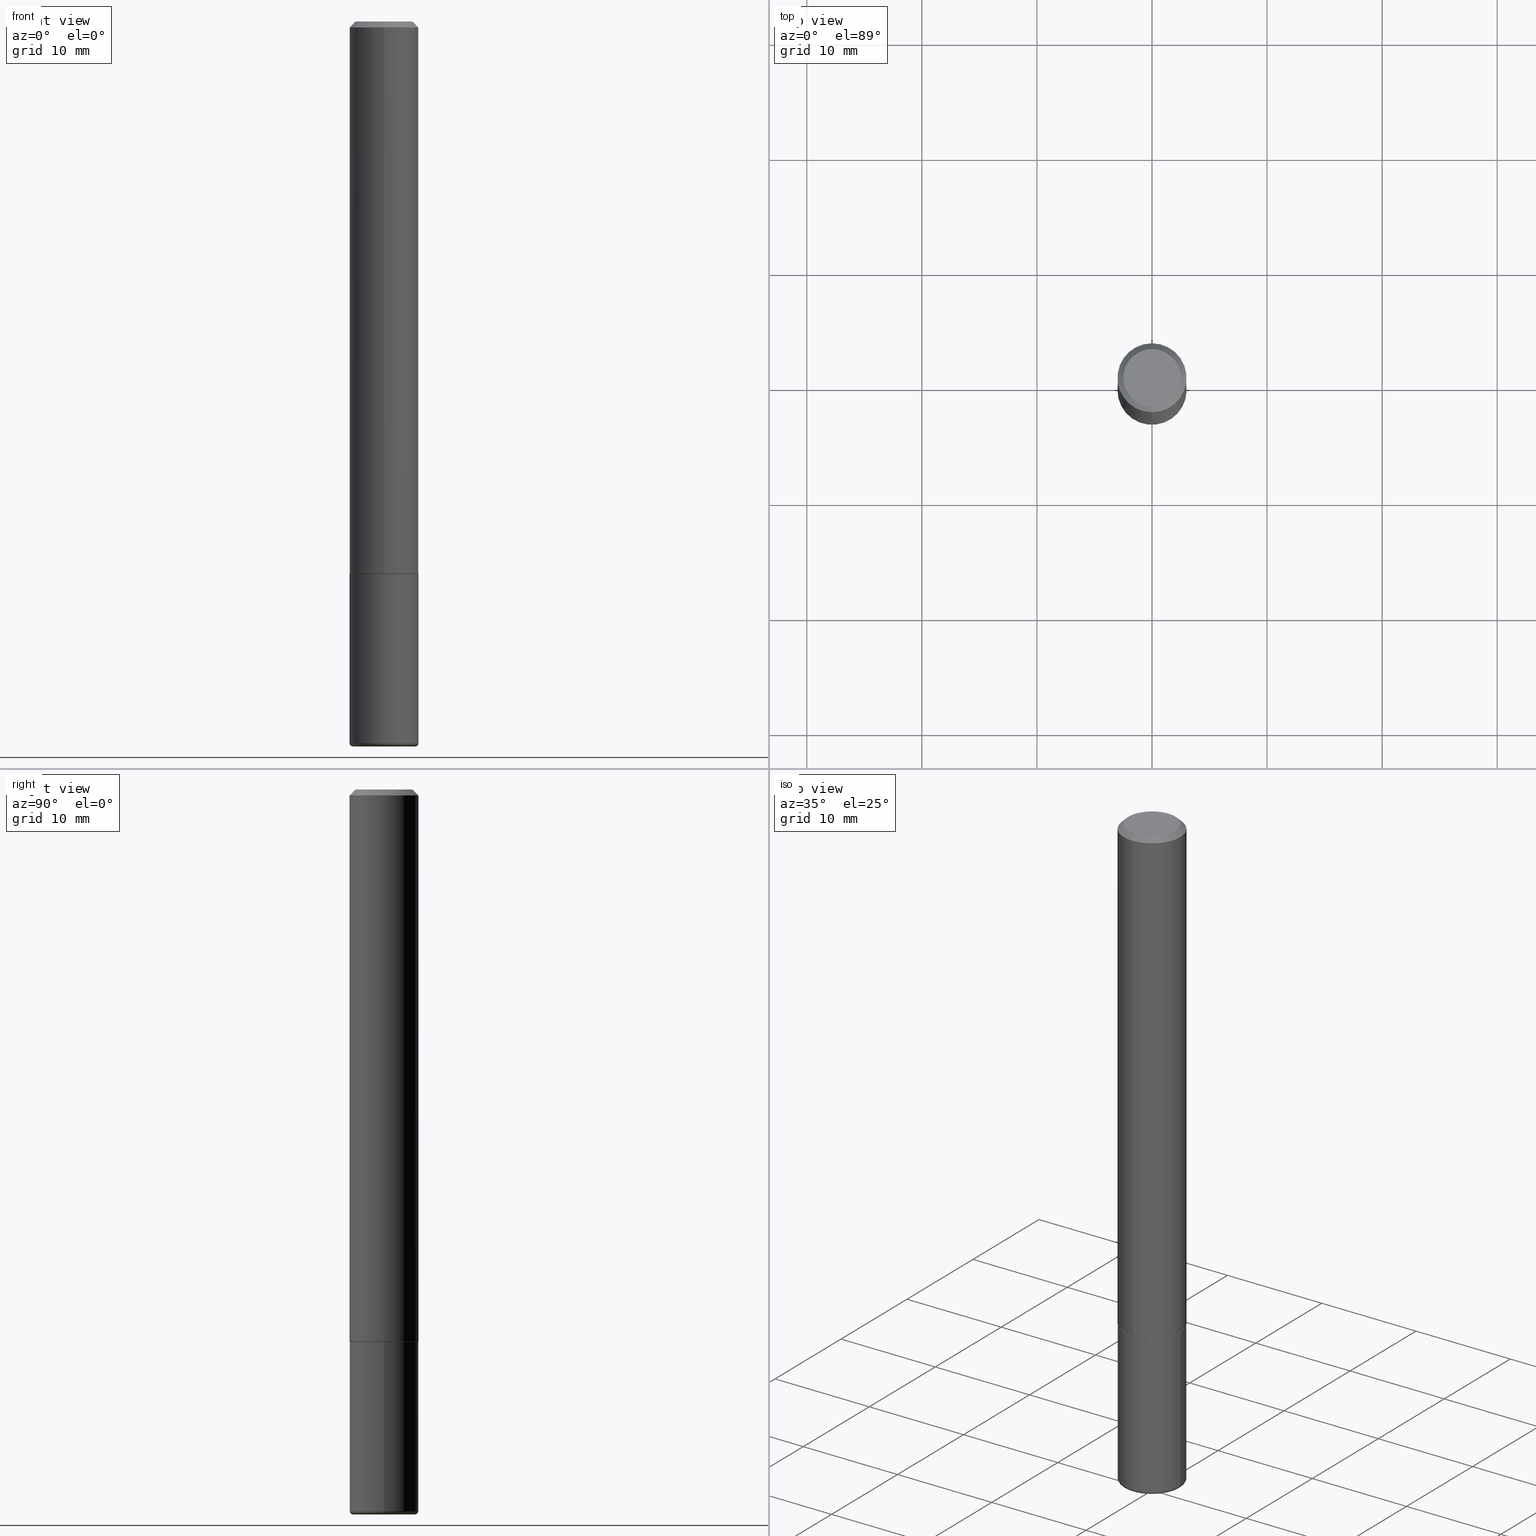
[diagram: canonical four-view strip — front | top / right | iso, engineering-drawing reading convention]
A machine part, canonical four-view strip (front | top / right | iso — engineering-drawing reading convention). The complete STEP part file that produces these views, byte-faithful:
ISO-10303-21;
HEADER;
FILE_DESCRIPTION (( 'STEP AP203' ),
    '1' );
FILE_NAME ('74304.STEP',
    '2024-03-06T15:07:32',
    ( '' ),
    ( '' ),
    'SwSTEP 2.0',
    'SolidWorks 2023',
    '' );
FILE_SCHEMA (( 'CONFIG_CONTROL_DESIGN' ));
ENDSEC;

DATA;
#1 = DIRECTION ( 'NONE',  ( 6.982962677686265922E-15, 1.000000000000000000, -3.505890868245044514E-15 ) ) ;
#2 = EDGE_CURVE ( 'NONE', #5, #232, #24, .T. ) ;
#3 = ORIENTED_EDGE ( 'NONE', *, *, #260, .T. ) ;
#4 = CARTESIAN_POINT ( 'NONE',  ( 0.1062999999999999640, -9.402210097370707052E-15, -2.480300000000001059 ) ) ;
#5 = VERTEX_POINT ( 'NONE', #91 ) ;
#6 = CIRCLE ( 'NONE', #376, 0.1180999999999999966 ) ;
#7 = CARTESIAN_POINT ( 'NONE',  ( 6.065496279980995876E-29, -8.659921164732656913E-15, -2.480300000000001059 ) ) ;
#8 = EDGE_CURVE ( 'NONE', #318, #301, #418, .T. ) ;
#9 = CC_DESIGN_PERSON_AND_ORGANIZATION_ASSIGNMENT ( #116, #52, ( #190 ) ) ;
#10 = EDGE_LOOP ( 'NONE', ( #224, #142 ) ) ;
#11 = CARTESIAN_POINT ( 'NONE',  ( -8.177049295570158041E-16, -0.1171000000000066155, -1.889700000000000379 ) ) ;
#12 = CIRCLE ( 'NONE', #160, 0.1171000000000000096 ) ;
#13 = CARTESIAN_POINT ( 'NONE',  ( 6.850286386810217648E-16, 0.09809999999999986786, -2.532481449102678727E-16 ) ) ;
#14 = EDGE_LOOP ( 'NONE', ( #296, #390, #57, #377 ) ) ;
#15 = CIRCLE ( 'NONE', #415, 0.1062999999999999640 ) ;
#16 = UNCERTAINTY_MEASURE_WITH_UNIT (LENGTH_MEASURE( 1.000000000000000082E-05 ), #48, 'distance_accuracy_value', 'NONE');
#17 = ORIENTED_EDGE ( 'NONE', *, *, #197, .F. ) ;
#18 = DIRECTION ( 'NONE',  ( -2.445468806185136597E-29, 3.491481338843145583E-15, 1.000000000000000000 ) ) ;
#19 = APPROVAL_STATUS ( 'not_yet_approved' ) ;
#20 = ORIENTED_EDGE ( 'NONE', *, *, #394, .T. ) ;
#21 = DIRECTION ( 'NONE',  ( -6.982962677686265133E-15, -1.000000000000000000, 4.626330217890359081E-15 ) ) ;
#22 = COORDINATED_UNIVERSAL_TIME_OFFSET ( 5, 0, .BEHIND. ) ;
#23 = ORIENTED_EDGE ( 'NONE', *, *, #169, .F. ) ;
#24 = CIRCLE ( 'NONE', #155, 0.09809999999999986786 ) ;
#25 = CALENDAR_DATE ( 2024, 6, 3 ) ;
#26 = FACE_OUTER_BOUND ( 'NONE', #170, .T. ) ;
#27 = VERTEX_POINT ( 'NONE', #215 ) ;
#28 = PERSON_AND_ORGANIZATION_ROLE ( 'classification_officer' ) ;
#29 = DIRECTION ( 'NONE',  ( 4.937700262164537787E-15, 0.7071067811865436870, -0.7071067811865513475 ) ) ;
#30 = FACE_OUTER_BOUND ( 'NONE', #123, .T. ) ;
#31 = DIMENSIONAL_EXPONENTS ( 1.000000000000000000, 0.000000000000000000, 0.000000000000000000, 0.000000000000000000, 0.000000000000000000, 0.000000000000000000, 0.000000000000000000 ) ;
#32 = AXIS2_PLACEMENT_3D ( 'NONE', #102, #299, #360 ) ;
#33 = CARTESIAN_POINT ( 'NONE',  ( 4.880328979817555756E-31, -6.998154843307694069E-17, -0.02000000000000006287 ) ) ;
#34 = EDGE_CURVE ( 'NONE', #101, #363, #347, .T. ) ;
#35 = ORIENTED_EDGE ( 'NONE', *, *, #310, .T. ) ;
#36 = LINE ( 'NONE', #268, #139 ) ;
#37 = CC_DESIGN_APPROVAL ( #62, ( #292 ) ) ;
#38 = VERTEX_POINT ( 'NONE', #55 ) ;
#39 = EDGE_CURVE ( 'NONE', #232, #5, #58, .T. ) ;
#40 = CARTESIAN_POINT ( 'NONE',  ( 0.000000000000000000, 0.000000000000000000, 0.000000000000000000 ) ) ;
#41 = CC_DESIGN_PERSON_AND_ORGANIZATION_ASSIGNMENT ( #375, #89, ( #182 ) ) ;
#42 = ORIENTED_EDGE ( 'NONE', *, *, #122, .F. ) ;
#43 = CARTESIAN_POINT ( 'NONE',  ( -0.1062999999999999640, -7.842092475310649423E-15, -2.480300000000001059 ) ) ;
#44 = ORIENTED_EDGE ( 'NONE', *, *, #133, .T. ) ;
#45 = CIRCLE ( 'NONE', #99, 0.1171000000000000096 ) ;
#46 = ORIENTED_EDGE ( 'NONE', *, *, #260, .F. ) ;
#47 = DIRECTION ( 'NONE',  ( -2.440164489908770066E-29, 3.499077421653835966E-15, 1.000000000000000000 ) ) ;
#48 =( CONVERSION_BASED_UNIT ( 'INCH', #407 ) LENGTH_UNIT ( ) NAMED_UNIT ( #31 ) );
#49 = CONICAL_SURFACE ( 'NONE', #108, 0.1181000000000000383, 0.7853981633974463916 ) ;
#50 = DIRECTION ( 'NONE',  ( -6.982962677686265922E-15, -1.000000000000000000, 3.499077421653835966E-15 ) ) ;
#51 = DIRECTION ( 'NONE',  ( -1.000000000000000000, 6.982962677686265922E-15, -4.876176775795935793E-29 ) ) ;
#52 = PERSON_AND_ORGANIZATION_ROLE ( 'creator' ) ;
#53 = CC_DESIGN_APPROVAL ( #134, ( #190 ) ) ;
#54 = EDGE_CURVE ( 'NONE', #408, #113, #107, .T. ) ;
#55 = CARTESIAN_POINT ( 'NONE',  ( -8.177049295570158041E-16, -0.1171000000000066155, -1.889700000000000379 ) ) ;
#56 = PRODUCT ( '74304', '74304', '', ( #313 ) ) ;
#57 = ORIENTED_EDGE ( 'NONE', *, *, #316, .T. ) ;
#58 = CIRCLE ( 'NONE', #295, 0.09809999999999986786 ) ;
#59 = COORDINATED_UNIVERSAL_TIME_OFFSET ( 5, 0, .BEHIND. ) ;
#60 = ADVANCED_FACE ( 'NONE', ( #84 ), #307, .T. ) ;
#61 = CARTESIAN_POINT ( 'NONE',  ( 6.036639748068010694E-29, -8.618721684934306273E-15, -2.468500000000000139 ) ) ;
#62 = APPROVAL ( #315, 'UNSPECIFIED' ) ;
#63 = AXIS2_PLACEMENT_3D ( 'NONE', #331, #194, #294 ) ;
#64 = CARTESIAN_POINT ( 'NONE',  ( 6.036639748068010694E-29, -8.618721684934306273E-15, -2.468500000000000139 ) ) ;
#65 = CARTESIAN_POINT ( 'NONE',  ( 4.608738672090694819E-29, -6.608707526277601759E-15, -1.888700000000000268 ) ) ;
#66 = AXIS2_PLACEMENT_3D ( 'NONE', #320, #317, #176 ) ;
#67 = AXIS2_PLACEMENT_3D ( 'NONE', #152, #47, #21 ) ;
#68 = VECTOR ( 'NONE', #362, 39.37007874015748143 ) ;
#69 = FACE_OUTER_BOUND ( 'NONE', #395, .T. ) ;
#70 = ORIENTED_EDGE ( 'NONE', *, *, #316, .F. ) ;
#71 = CARTESIAN_POINT ( 'NONE',  ( 6.036639748068010694E-29, -8.618721684934306273E-15, -2.468500000000000139 ) ) ;
#72 = ADVANCED_FACE ( 'NONE', ( #118 ), #288, .T. ) ;
#73 = ORIENTED_EDGE ( 'NONE', *, *, #92, .T. ) ;
#74 = DIRECTION ( 'NONE',  ( 7.105427357601001859E-15, 1.000000000000000000, -3.491481338843145583E-15 ) ) ;
#75 = CC_DESIGN_SECURITY_CLASSIFICATION ( #292, ( #182 ) ) ;
#76 = ORIENTED_EDGE ( 'NONE', *, *, #97, .F. ) ;
#77 = DIRECTION ( 'NONE',  ( -2.440164489908770346E-29, 3.499077421653835966E-15, 1.000000000000000000 ) ) ;
#78 = EDGE_LOOP ( 'NONE', ( #330, #44, #373, #277 ) ) ;
#79 = DIRECTION ( 'NONE',  ( -2.445468806185136597E-29, 3.491481338843145583E-15, 1.000000000000000000 ) ) ;
#80 = EDGE_LOOP ( 'NONE', ( #311, #203 ) ) ;
#81 = DIRECTION ( 'NONE',  ( -6.982962677686265133E-15, -1.000000000000000000, 4.626330217890359081E-15 ) ) ;
#82 = CARTESIAN_POINT ( 'NONE',  ( 8.246878922347486570E-16, 0.1180999999999999689, -0.02000000000000047920 ) ) ;
#83 = CIRCLE ( 'NONE', #221, 0.1181000000000002603 ) ;
#84 = FACE_OUTER_BOUND ( 'NONE', #263, .T. ) ;
#85 = DIRECTION ( 'NONE',  ( 2.440164489908769786E-29, -3.499077421653835966E-15, -1.000000000000000000 ) ) ;
#86 = ADVANCED_FACE ( 'NONE', ( #279 ), #130, .T. ) ;
#87 = DATE_AND_TIME ( #403, #248 ) ;
#88 = DIRECTION ( 'NONE',  ( 5.024295867787803643E-15, 0.7071067811865135999, 0.7071067811865812125 ) ) ;
#89 = PERSON_AND_ORGANIZATION_ROLE ( 'design_supplier' ) ;
#90 = APPROVAL_PERSON_ORGANIZATION ( #309, #134, #150 ) ;
#91 = CARTESIAN_POINT ( 'NONE',  ( 7.548582654578852602E-16, 0.09809999999999986786, -1.632367947562948598E-16 ) ) ;
#92 = EDGE_CURVE ( 'NONE', #38, #27, #45, .T. ) ;
#93 = CALENDAR_DATE ( 2024, 6, 3 ) ;
#94 = DIRECTION ( 'NONE',  ( -6.982962677686266711E-15, -1.000000000000000000, 2.332918867347790727E-15 ) ) ;
#95 = PERSON_AND_ORGANIZATION ( #417, #212 ) ;
#96 = CARTESIAN_POINT ( 'NONE',  ( 4.611178836580604355E-29, -6.612206603699256754E-15, -1.889700000000000601 ) ) ;
#97 = EDGE_CURVE ( 'NONE', #401, #408, #312, .T. ) ;
#98 = PRODUCT_RELATED_PRODUCT_CATEGORY ( 'detail', '', ( #56 ) ) ;
#99 = AXIS2_PLACEMENT_3D ( 'NONE', #96, #367, #94 ) ;
#100 = CARTESIAN_POINT ( 'NONE',  ( -8.102248135368175393E-16, -0.1181000000000001077, -0.01999999999999965000 ) ) ;
#101 = VERTEX_POINT ( 'NONE', #413 ) ;
#102 = CARTESIAN_POINT ( 'NONE',  ( 4.611178836580604355E-29, -6.612206603699256754E-15, -1.889700000000000601 ) ) ;
#103 = LOCAL_TIME ( 10, 7, 32.00000000000000000, #22 ) ;
#104 = ORIENTED_EDGE ( 'NONE', *, *, #8, .T. ) ;
#105 = CARTESIAN_POINT ( 'NONE',  ( 4.880328979817555756E-31, -6.998154843307694069E-17, -0.02000000000000006287 ) ) ;
#106 = DIRECTION ( 'NONE',  ( -2.440164489908770066E-29, 3.499077421653835966E-15, 1.000000000000000000 ) ) ;
#107 = CIRCLE ( 'NONE', #117, 0.1180999999999999966 ) ;
#108 = AXIS2_PLACEMENT_3D ( 'NONE', #33, #165, #1 ) ;
#109 = FACE_OUTER_BOUND ( 'NONE', #361, .T. ) ;
#110 = DIRECTION ( 'NONE',  ( -6.982962677686266711E-15, -1.000000000000000000, 3.491481338843145583E-15 ) ) ;
#111 = CARTESIAN_POINT ( 'NONE',  ( 0.000000000000000000, 0.000000000000000000, 0.000000000000000000 ) ) ;
#112 = APPLICATION_PROTOCOL_DEFINITION ( 'international standard', 'config_control_design', 1994, #220 ) ;
#113 = VERTEX_POINT ( 'NONE', #149 ) ;
#114 = ADVANCED_FACE ( 'NONE', ( #30 ), #291, .F. ) ;
#115 = DIRECTION ( 'NONE',  ( -2.445468806185136597E-29, 3.491481338843145583E-15, 1.000000000000000000 ) ) ;
#116 = PERSON_AND_ORGANIZATION ( #417, #212 ) ;
#117 = AXIS2_PLACEMENT_3D ( 'NONE', #366, #336, #178 ) ;
#118 = FACE_OUTER_BOUND ( 'NONE', #148, .T. ) ;
#119 = CARTESIAN_POINT ( 'NONE',  ( -8.102248135368175393E-16, -0.1181000000000001077, -0.01999999999999965000 ) ) ;
#120 = DATE_AND_TIME ( #246, #300 ) ;
#121 =( NAMED_UNIT ( * ) PLANE_ANGLE_UNIT ( ) SI_UNIT ( $, .RADIAN. ) );
#122 = EDGE_CURVE ( 'NONE', #137, #101, #83, .T. ) ;
#123 = EDGE_LOOP ( 'NONE', ( #20, #146 ) ) ;
#124 = CC_DESIGN_PERSON_AND_ORGANIZATION_ASSIGNMENT ( #95, #280, ( #182 ) ) ;
#125 =( LENGTH_UNIT ( ) NAMED_UNIT ( * ) SI_UNIT ( $, .METRE. ) );
#126 = LOCAL_TIME ( 10, 7, 32.00000000000000000, #287 ) ;
#127 = DIRECTION ( 'NONE',  ( -6.982962677686265922E-15, -1.000000000000000000, 3.499077421653835571E-15 ) ) ;
#128 = VECTOR ( 'NONE', #77, 39.37007874015748143 ) ;
#129 = APPROVAL_STATUS ( 'not_yet_approved' ) ;
#130 = CYLINDRICAL_SURFACE ( 'NONE', #371, 0.1180999999999999966 ) ;
#131 =( GEOMETRIC_REPRESENTATION_CONTEXT ( 3 ) GLOBAL_UNCERTAINTY_ASSIGNED_CONTEXT ( ( #16 ) ) GLOBAL_UNIT_ASSIGNED_CONTEXT ( ( #48, #121, #379 ) ) REPRESENTATION_CONTEXT ( 'NONE', 'WORKASPACE' ) );
#132 = ADVANCED_FACE ( 'NONE', ( #239 ), #181, .F. ) ;
#133 = EDGE_CURVE ( 'NONE', #27, #38, #12, .T. ) ;
#134 = APPROVAL ( #19, 'UNSPECIFIED' ) ;
#135 = AXIS2_PLACEMENT_3D ( 'NONE', #243, #235, #259 ) ;
#136 = DIRECTION ( 'NONE',  ( 1.000000000000000000, -6.982962677686263555E-15, 0.000000000000000000 ) ) ;
#137 = VERTEX_POINT ( 'NONE', #303 ) ;
#138 = CYLINDRICAL_SURFACE ( 'NONE', #193, 0.1180999999999999966 ) ;
#139 = VECTOR ( 'NONE', #88, 39.37007874015748854 ) ;
#140 = ORIENTED_EDGE ( 'NONE', *, *, #162, .T. ) ;
#141 = FACE_OUTER_BOUND ( 'NONE', #14, .T. ) ;
#142 = ORIENTED_EDGE ( 'NONE', *, *, #39, .T. ) ;
#143 = CARTESIAN_POINT ( 'NONE',  ( -8.246878922347489529E-16, -0.1181000000000001354, 4.132410434973184795E-16 ) ) ;
#144 = AXIS2_PLACEMENT_3D ( 'NONE', #13, #85, #218 ) ;
#145 = DIRECTION ( 'NONE',  ( -2.440164489908770066E-29, 3.499077421653835966E-15, 1.000000000000000000 ) ) ;
#146 = ORIENTED_EDGE ( 'NONE', *, *, #54, .T. ) ;
#147 = CIRCLE ( 'NONE', #306, 0.01180000000000033626 ) ;
#148 = EDGE_LOOP ( 'NONE', ( #73, #397, #42, #267 ) ) ;
#149 = CARTESIAN_POINT ( 'NONE',  ( 0.1180999999999999966, -7.422540178246641541E-15, -1.889700000000000379 ) ) ;
#150 = APPROVAL_ROLE ( '' ) ;
#151 = DIRECTION ( 'NONE',  ( 1.000000000000000000, -6.982962677686347963E-15, 0.000000000000000000 ) ) ;
#152 = CARTESIAN_POINT ( 'NONE',  ( 4.608738672090694819E-29, -6.608707526277601759E-15, -1.888700000000000268 ) ) ;
#153 = ADVANCED_FACE ( 'NONE', ( #217 ), #337, .T. ) ;
#154 = COORDINATED_UNIVERSAL_TIME_OFFSET ( 5, 0, .BEHIND. ) ;
#155 = AXIS2_PLACEMENT_3D ( 'NONE', #344, #211, #204 ) ;
#156 = ORIENTED_EDGE ( 'NONE', *, *, #169, .T. ) ;
#157 = ORIENTED_EDGE ( 'NONE', *, *, #54, .F. ) ;
#158 = DATE_AND_TIME ( #213, #103 ) ;
#159 = LINE ( 'NONE', #143, #128 ) ;
#160 = AXIS2_PLACEMENT_3D ( 'NONE', #352, #289, #351 ) ;
#161 = DIRECTION ( 'NONE',  ( 1.000000000000000000, -6.982962677686266711E-15, 4.876176775795936353E-29 ) ) ;
#162 = EDGE_CURVE ( 'NONE', #101, #137, #355, .T. ) ;
#163 = ADVANCED_FACE ( 'NONE', ( #191 ), #207, .T. ) ;
#164 = CIRCLE ( 'NONE', #349, 0.1180999999999999966 ) ;
#165 = DIRECTION ( 'NONE',  ( 2.440164489908770066E-29, -3.499077421653835966E-15, -1.000000000000000000 ) ) ;
#166 = VECTOR ( 'NONE', #369, 39.37007874015748143 ) ;
#167 = ORIENTED_EDGE ( 'NONE', *, *, #8, .F. ) ;
#168 = DIRECTION ( 'NONE',  ( -6.982962677686265922E-15, -1.000000000000000000, 3.505890868245044514E-15 ) ) ;
#169 = EDGE_CURVE ( 'NONE', #301, #113, #402, .T. ) ;
#170 = EDGE_LOOP ( 'NONE', ( #17, #314, #172, #275 ) ) ;
#171 = FACE_OUTER_BOUND ( 'NONE', #80, .T. ) ;
#172 = ORIENTED_EDGE ( 'NONE', *, *, #200, .T. ) ;
#173 = CARTESIAN_POINT ( 'NONE',  ( -0.1063000000000000056, -7.863414756821319342E-15, -2.468500000000000139 ) ) ;
#174 = CC_DESIGN_PERSON_AND_ORGANIZATION_ASSIGNMENT ( #378, #28, ( #292 ) ) ;
#175 = ORIENTED_EDGE ( 'NONE', *, *, #394, .F. ) ;
#176 = DIRECTION ( 'NONE',  ( 1.000000000000000000, 0.000000000000000000, 0.000000000000000000 ) ) ;
#177 = AXIS2_PLACEMENT_3D ( 'NONE', #64, #18, #276 ) ;
#178 = DIRECTION ( 'NONE',  ( 1.000000000000000000, -6.982962677686265133E-15, 0.000000000000000000 ) ) ;
#179 = CONICAL_SURFACE ( 'NONE', #32, 0.1171000000000000096, 0.7853981633973970977 ) ;
#180 = ORIENTED_EDGE ( 'NONE', *, *, #353, .F. ) ;
#181 = PLANE ( 'NONE',  #144 ) ;
#182 = PRODUCT_DEFINITION_FORMATION_WITH_SPECIFIED_SOURCE ( 'ANY', '', #56, .NOT_KNOWN. ) ;
#183 = DIRECTION ( 'NONE',  ( 6.982962677686265922E-15, 1.000000000000000000, -3.505890868245044514E-15 ) ) ;
#184 = ORIENTED_EDGE ( 'NONE', *, *, #219, .F. ) ;
#185 = CLOSED_SHELL ( 'NONE', ( #285, #163, #114, #86, #391, #153 ) ) ;
#186 = DIRECTION ( 'NONE',  ( -2.440164489908770066E-29, 3.499077421653835966E-15, 1.000000000000000000 ) ) ;
#187 = APPROVAL_ROLE ( '' ) ;
#188 = DATE_TIME_ROLE ( 'classification_date' ) ;
#189 = CARTESIAN_POINT ( 'NONE',  ( 8.246878922347486570E-16, 0.1180999999999999689, -0.02000000000000047920 ) ) ;
#190 = PRODUCT_DEFINITION ( 'UNKNOWN', '', #182, #321 ) ;
#191 = FACE_OUTER_BOUND ( 'NONE', #236, .T. ) ;
#192 = CONICAL_SURFACE ( 'NONE', #359, 0.1181000000000000383, 0.7853981633974463916 ) ;
#193 = AXIS2_PLACEMENT_3D ( 'NONE', #233, #364, #222 ) ;
#194 = DIRECTION ( 'NONE',  ( -2.440164489908769786E-29, 3.499077421653835966E-15, 1.000000000000000000 ) ) ;
#195 = ORIENTED_EDGE ( 'NONE', *, *, #245, .T. ) ;
#196 = DIRECTION ( 'NONE',  ( -2.445468806185136597E-29, 3.491481338843145583E-15, 1.000000000000000000 ) ) ;
#197 = EDGE_CURVE ( 'NONE', #232, #273, #406, .T. ) ;
#198 = PLANE ( 'NONE',  #63 ) ;
#199 = ORIENTED_EDGE ( 'NONE', *, *, #97, .T. ) ;
#200 = EDGE_CURVE ( 'NONE', #5, #363, #374, .T. ) ;
#201 = CARTESIAN_POINT ( 'NONE',  ( 4.880328979817555756E-31, -6.998154843307694069E-17, -0.02000000000000006287 ) ) ;
#202 = APPROVAL ( #129, 'UNSPECIFIED' ) ;
#203 = ORIENTED_EDGE ( 'NONE', *, *, #133, .F. ) ;
#204 = DIRECTION ( 'NONE',  ( -6.982962677686265922E-15, -1.000000000000000000, 3.499077421653835571E-15 ) ) ;
#205 = CARTESIAN_POINT ( 'NONE',  ( 4.611178836580604355E-29, -6.612206603699256754E-15, -1.889700000000000601 ) ) ;
#206 = CARTESIAN_POINT ( 'NONE',  ( 4.621202403048053204E-29, -6.597852286011893278E-15, -1.889700000000000379 ) ) ;
#207 = TOROIDAL_SURFACE ( 'NONE', #177, 0.1063000000000000056, 0.01180000000000033626 ) ;
#208 = CARTESIAN_POINT ( 'NONE',  ( 0.000000000000000000, 0.000000000000000000, 0.000000000000000000 ) ) ;
#209 = CARTESIAN_POINT ( 'NONE',  ( 0.1180999999999999966, -8.246878922347480654E-16, 5.758764772215000440E-30 ) ) ;
#210 = APPROVAL_DATE_TIME ( #87, #134 ) ;
#211 = DIRECTION ( 'NONE',  ( -2.440164489908770066E-29, 3.499077421653835966E-15, 1.000000000000000000 ) ) ;
#212 = ORGANIZATION ( 'UNSPECIFIED', 'UNSPECIFIED', '' ) ;
#213 = CALENDAR_DATE ( 2024, 6, 3 ) ;
#214 = CARTESIAN_POINT ( 'NONE',  ( 4.880328979817555756E-31, -6.998154843307694069E-17, -0.02000000000000006287 ) ) ;
#215 = CARTESIAN_POINT ( 'NONE',  ( 8.355982572539253205E-16, 0.1170999999999934177, -1.889700000000000824 ) ) ;
#216 = ADVANCED_BREP_SHAPE_REPRESENTATION ( '74304', ( #255, #386, #66 ), #131 ) ;
#217 = FACE_OUTER_BOUND ( 'NONE', #282, .T. ) ;
#218 = DIRECTION ( 'NONE',  ( 6.982962677686265922E-15, 1.000000000000000000, -3.499077421653835966E-15 ) ) ;
#219 = EDGE_CURVE ( 'NONE', #137, #273, #159, .T. ) ;
#220 = APPLICATION_CONTEXT ( 'configuration controlled 3d designs of mechanical parts and assemblies' ) ;
#221 = AXIS2_PLACEMENT_3D ( 'NONE', #65, #370, #81 ) ;
#222 = DIRECTION ( 'NONE',  ( 1.000000000000000000, -6.982962677686266711E-15, 4.876176775795936353E-29 ) ) ;
#223 = CIRCLE ( 'NONE', #271, 0.1180999999999999966 ) ;
#224 = ORIENTED_EDGE ( 'NONE', *, *, #2, .T. ) ;
#225 = EDGE_CURVE ( 'NONE', #363, #273, #412, .T. ) ;
#226 = CARTESIAN_POINT ( 'NONE',  ( -7.416198335591019120E-16, -0.09809999999999986786, 5.232821953721869360E-16 ) ) ;
#227 = CC_DESIGN_APPROVAL ( #202, ( #182 ) ) ;
#228 = DIRECTION ( 'NONE',  ( -2.440164489908770066E-29, 3.499077421653835966E-15, 1.000000000000000000 ) ) ;
#229 = ADVANCED_FACE ( 'NONE', ( #69 ), #231, .T. ) ;
#230 = AXIS2_PLACEMENT_3D ( 'NONE', #242, #110, #151 ) ;
#231 = CYLINDRICAL_SURFACE ( 'NONE', #290, 0.1181000000000001354 ) ;
#232 = VERTEX_POINT ( 'NONE', #226 ) ;
#233 = CARTESIAN_POINT ( 'NONE',  ( 0.000000000000000000, 0.000000000000000000, 0.000000000000000000 ) ) ;
#234 = ORIENTED_EDGE ( 'NONE', *, *, #339, .T. ) ;
#235 = DIRECTION ( 'NONE',  ( 2.438088387897960049E-29, -3.491481338843145188E-15, -1.000000000000000000 ) ) ;
#236 = EDGE_LOOP ( 'NONE', ( #234, #3, #251, #167 ) ) ;
#237 = COORDINATED_UNIVERSAL_TIME_OFFSET ( 5, 0, .BEHIND. ) ;
#238 = CARTESIAN_POINT ( 'NONE',  ( 8.391509709326791832E-16, 0.1181000000000001354, -4.132410434973184795E-16 ) ) ;
#239 = FACE_OUTER_BOUND ( 'NONE', #10, .T. ) ;
#240 = DIRECTION ( 'NONE',  ( 1.000000000000000000, -6.982962677686261189E-15, 4.883557194083110659E-29 ) ) ;
#241 = LOCAL_TIME ( 10, 7, 32.00000000000000000, #59 ) ;
#242 = CARTESIAN_POINT ( 'NONE',  ( 0.1063000000000000056, -9.361010617572356412E-15, -2.468500000000000139 ) ) ;
#243 = CARTESIAN_POINT ( 'NONE',  ( -2.836700619046448154E-29, -2.140837380572127340E-14, -2.480300000000000171 ) ) ;
#244 = PERSON_AND_ORGANIZATION ( #417, #212 ) ;
#245 = EDGE_CURVE ( 'NONE', #301, #401, #164, .T. ) ;
#246 = CALENDAR_DATE ( 2024, 6, 3 ) ;
#247 = ORIENTED_EDGE ( 'NONE', *, *, #225, .F. ) ;
#248 = LOCAL_TIME ( 10, 7, 32.00000000000000000, #237 ) ;
#249 = DATE_AND_TIME ( #25, #241 ) ;
#250 = DIRECTION ( 'NONE',  ( -2.445468806185136597E-29, 3.491481338843145583E-15, 1.000000000000000000 ) ) ;
#251 = ORIENTED_EDGE ( 'NONE', *, *, #245, .F. ) ;
#252 = SECURITY_CLASSIFICATION_LEVEL ( 'unclassified' ) ;
#253 = CC_DESIGN_DATE_AND_TIME_ASSIGNMENT ( #158, #188, ( #292 ) ) ;
#254 = AXIS2_PLACEMENT_3D ( 'NONE', #384, #308, #51 ) ;
#255 = MANIFOLD_SOLID_BREP ( 'Body-Move/Copy2[1]', #185 ) ;
#256 = SHAPE_DEFINITION_REPRESENTATION ( #257, #216 ) ;
#257 = PRODUCT_DEFINITION_SHAPE ( 'NONE', 'NONE',  #190 ) ;
#258 = CIRCLE ( 'NONE', #293, 0.1062999999999999640 ) ;
#259 = DIRECTION ( 'NONE',  ( -1.000000000000000000, 6.982962677686265922E-15, -4.876176775795935793E-29 ) ) ;
#260 = EDGE_CURVE ( 'NONE', #286, #401, #147, .T. ) ;
#261 = VECTOR ( 'NONE', #398, 39.37007874015748143 ) ;
#262 = CARTESIAN_POINT ( 'NONE',  ( 0.1181000000000001632, -9.443409577169056114E-15, -2.468500000000000139 ) ) ;
#263 = EDGE_LOOP ( 'NONE', ( #358, #140, #269, #247 ) ) ;
#264 = CARTESIAN_POINT ( 'NONE',  ( 6.065496279980995876E-29, -8.659921164732656913E-15, -2.480300000000001059 ) ) ;
#265 = EDGE_CURVE ( 'NONE', #38, #137, #396, .T. ) ;
#266 = CC_DESIGN_DATE_AND_TIME_ASSIGNMENT ( #120, #283, ( #190 ) ) ;
#267 = ORIENTED_EDGE ( 'NONE', *, *, #265, .F. ) ;
#268 = CARTESIAN_POINT ( 'NONE',  ( 8.320455435751233373E-16, 0.1170999999999934038, -1.889700000000000824 ) ) ;
#269 = ORIENTED_EDGE ( 'NONE', *, *, #219, .T. ) ;
#270 = DIRECTION ( 'NONE',  ( -2.440164489908770066E-29, 3.499077421653835966E-15, 1.000000000000000000 ) ) ;
#271 = AXIS2_PLACEMENT_3D ( 'NONE', #71, #196, #329 ) ;
#272 = DIRECTION ( 'NONE',  ( -6.982962677686266711E-15, -1.000000000000000000, 2.332918867347790727E-15 ) ) ;
#273 = VERTEX_POINT ( 'NONE', #100 ) ;
#274 = PERSON_AND_ORGANIZATION ( #417, #212 ) ;
#275 = ORIENTED_EDGE ( 'NONE', *, *, #225, .T. ) ;
#276 = DIRECTION ( 'NONE',  ( 1.000000000000000000, -6.982962677686261189E-15, 4.883557194083110659E-29 ) ) ;
#277 = ORIENTED_EDGE ( 'NONE', *, *, #162, .F. ) ;
#278 = ADVANCED_FACE ( 'NONE', ( #171 ), #198, .F. ) ;
#279 = FACE_OUTER_BOUND ( 'NONE', #305, .T. ) ;
#280 = PERSON_AND_ORGANIZATION_ROLE ( 'creator' ) ;
#281 = FACE_OUTER_BOUND ( 'NONE', #380, .T. ) ;
#282 = EDGE_LOOP ( 'NONE', ( #332, #409 ) ) ;
#283 = DATE_TIME_ROLE ( 'creation_date' ) ;
#284 = CARTESIAN_POINT ( 'NONE',  ( -0.1180999999999999966, -6.769136014540420790E-15, -1.889700000000000379 ) ) ;
#285 = ADVANCED_FACE ( 'NONE', ( #109 ), #138, .T. ) ;
#286 = VERTEX_POINT ( 'NONE', #43 ) ;
#287 = COORDINATED_UNIVERSAL_TIME_OFFSET ( 5, 0, .BEHIND. ) ;
#288 = CONICAL_SURFACE ( 'NONE', #388, 0.1171000000000000096, 0.7853981633973970977 ) ;
#289 = DIRECTION ( 'NONE',  ( -2.440164489908770066E-29, 3.499077421653835966E-15, 1.000000000000000000 ) ) ;
#290 = AXIS2_PLACEMENT_3D ( 'NONE', #40, #228, #302 ) ;
#291 = PLANE ( 'NONE',  #254 ) ;
#292 = SECURITY_CLASSIFICATION ( '', '', #252 ) ;
#293 = AXIS2_PLACEMENT_3D ( 'NONE', #7, #79, #136 ) ;
#294 = DIRECTION ( 'NONE',  ( -6.982962677686265922E-15, -1.000000000000000000, 3.499077421653835966E-15 ) ) ;
#295 = AXIS2_PLACEMENT_3D ( 'NONE', #404, #186, #127 ) ;
#296 = ORIENTED_EDGE ( 'NONE', *, *, #39, .F. ) ;
#297 = DIRECTION ( 'NONE',  ( -1.000000000000000000, 7.105427357601042879E-15, 0.000000000000000000 ) ) ;
#298 = ORIENTED_EDGE ( 'NONE', *, *, #122, .T. ) ;
#299 = DIRECTION ( 'NONE',  ( -2.440164489908770066E-29, 3.499077421653835966E-15, 1.000000000000000000 ) ) ;
#300 = LOCAL_TIME ( 10, 7, 32.00000000000000000, #154 ) ;
#301 = VERTEX_POINT ( 'NONE', #262 ) ;
#302 = DIRECTION ( 'NONE',  ( -6.982962677686265922E-15, -1.000000000000000000, 3.499077421653835966E-15 ) ) ;
#303 = CARTESIAN_POINT ( 'NONE',  ( -8.246878922347036920E-16, -0.1181000000000068662, -1.888699999999999823 ) ) ;
#304 = VECTOR ( 'NONE', #322, 39.37007874015748143 ) ;
#305 = EDGE_LOOP ( 'NONE', ( #76, #399, #156, #157 ) ) ;
#306 = AXIS2_PLACEMENT_3D ( 'NONE', #173, #74, #297 ) ;
#307 = CYLINDRICAL_SURFACE ( 'NONE', #338, 0.1181000000000001354 ) ;
#308 = DIRECTION ( 'NONE',  ( 2.438088387897960049E-29, -3.491481338843145188E-15, -1.000000000000000000 ) ) ;
#309 = PERSON_AND_ORGANIZATION ( #417, #212 ) ;
#310 = EDGE_CURVE ( 'NONE', #286, #318, #15, .T. ) ;
#311 = ORIENTED_EDGE ( 'NONE', *, *, #92, .F. ) ;
#312 = LINE ( 'NONE', #324, #261 ) ;
#313 = MECHANICAL_CONTEXT ( 'NONE', #348, 'mechanical' ) ;
#314 = ORIENTED_EDGE ( 'NONE', *, *, #2, .F. ) ;
#315 = APPROVAL_STATUS ( 'not_yet_approved' ) ;
#316 = EDGE_CURVE ( 'NONE', #273, #363, #383, .T. ) ;
#317 = DIRECTION ( 'NONE',  ( 0.000000000000000000, 0.000000000000000000, 1.000000000000000000 ) ) ;
#318 = VERTEX_POINT ( 'NONE', #4 ) ;
#319 = DATE_AND_TIME ( #93, #126 ) ;
#320 = CARTESIAN_POINT ( 'NONE',  ( 0.000000000000000000, 0.000000000000000000, 0.000000000000000000 ) ) ;
#321 = DESIGN_CONTEXT ( 'detailed design', #220, 'design' ) ;
#322 = DIRECTION ( 'NONE',  ( -4.851104656540954020E-15, -0.7071067811865485719, -0.7071067811865464625 ) ) ;
#323 = VECTOR ( 'NONE', #342, 39.37007874015748143 ) ;
#324 = CARTESIAN_POINT ( 'NONE',  ( -0.1180999999999999966, 8.391509709326782957E-16, -5.809262341591043784E-30 ) ) ;
#325 = ADVANCED_FACE ( 'NONE', ( #328 ), #179, .T. ) ;
#326 = AXIS2_PLACEMENT_3D ( 'NONE', #61, #368, #240 ) ;
#327 = AXIS2_PLACEMENT_3D ( 'NONE', #201, #106, #333 ) ;
#328 = FACE_OUTER_BOUND ( 'NONE', #78, .T. ) ;
#329 = DIRECTION ( 'NONE',  ( 1.000000000000000000, -6.982962677686265133E-15, 0.000000000000000000 ) ) ;
#330 = ORIENTED_EDGE ( 'NONE', *, *, #354, .F. ) ;
#331 = CARTESIAN_POINT ( 'NONE',  ( 4.611178836580603234E-29, -6.612206603699255966E-15, -1.889700000000000379 ) ) ;
#332 = ORIENTED_EDGE ( 'NONE', *, *, #339, .F. ) ;
#333 = DIRECTION ( 'NONE',  ( -6.982962677686265922E-15, -1.000000000000000000, 3.505890868245044514E-15 ) ) ;
#334 = ORIENTED_EDGE ( 'NONE', *, *, #34, .T. ) ;
#335 = DIRECTION ( 'NONE',  ( 2.440164489908770066E-29, -3.499077421653835966E-15, -1.000000000000000000 ) ) ;
#336 = DIRECTION ( 'NONE',  ( -2.445468806185136597E-29, 3.491481338843145583E-15, 1.000000000000000000 ) ) ;
#337 = PLANE ( 'NONE',  #135 ) ;
#338 = AXIS2_PLACEMENT_3D ( 'NONE', #208, #341, #50 ) ;
#339 = EDGE_CURVE ( 'NONE', #318, #286, #258, .T. ) ;
#340 = DIRECTION ( 'NONE',  ( 1.000000000000000000, -6.982962677686265133E-15, 0.000000000000000000 ) ) ;
#341 = DIRECTION ( 'NONE',  ( -2.440164489908770066E-29, 3.499077421653835966E-15, 1.000000000000000000 ) ) ;
#342 = DIRECTION ( 'NONE',  ( -2.445468806185136877E-29, 3.491481338843145188E-15, 1.000000000000000000 ) ) ;
#343 = TOROIDAL_SURFACE ( 'NONE', #326, 0.1063000000000000056, 0.01180000000000033626 ) ;
#344 = CARTESIAN_POINT ( 'NONE',  ( -4.392850006689384576E-45, 6.299133660326889918E-31, 1.800227003079460011E-16 ) ) ;
#345 = ADVANCED_FACE ( 'NONE', ( #141 ), #49, .T. ) ;
#346 = CARTESIAN_POINT ( 'NONE',  ( -0.1181000000000001632, -7.779570714001625710E-15, -2.468500000000000139 ) ) ;
#347 = LINE ( 'NONE', #238, #166 ) ;
#348 = APPLICATION_CONTEXT ( 'configuration controlled 3d designs of mechanical parts and assemblies' ) ;
#349 = AXIS2_PLACEMENT_3D ( 'NONE', #393, #392, #389 ) ;
#350 = APPROVAL_DATE_TIME ( #319, #202 ) ;
#351 = DIRECTION ( 'NONE',  ( -6.982962677686266711E-15, -1.000000000000000000, 2.332918867347790727E-15 ) ) ;
#352 = CARTESIAN_POINT ( 'NONE',  ( 4.611178836580604355E-29, -6.612206603699256754E-15, -1.889700000000000601 ) ) ;
#353 = EDGE_CURVE ( 'NONE', #401, #301, #223, .T. ) ;
#354 = EDGE_CURVE ( 'NONE', #27, #101, #36, .T. ) ;
#355 = CIRCLE ( 'NONE', #67, 0.1181000000000002603 ) ;
#356 = AXIS2_PLACEMENT_3D ( 'NONE', #105, #270, #168 ) ;
#357 = DIRECTION ( 'NONE',  ( -2.445468806185136597E-29, 3.491481338843145583E-15, 1.000000000000000000 ) ) ;
#358 = ORIENTED_EDGE ( 'NONE', *, *, #34, .F. ) ;
#359 = AXIS2_PLACEMENT_3D ( 'NONE', #214, #335, #183 ) ;
#360 = DIRECTION ( 'NONE',  ( -6.982962677686266711E-15, -1.000000000000000000, 2.332918867347790727E-15 ) ) ;
#361 = EDGE_LOOP ( 'NONE', ( #195, #199, #175, #23 ) ) ;
#362 = DIRECTION ( 'NONE',  ( -4.937700262164294818E-15, -0.7071067811865088260, 0.7071067811865862085 ) ) ;
#363 = VERTEX_POINT ( 'NONE', #82 ) ;
#364 = DIRECTION ( 'NONE',  ( -2.445468806185136597E-29, 3.491481338843145583E-15, 1.000000000000000000 ) ) ;
#365 = DIRECTION ( 'NONE',  ( 1.000000000000000000, -6.982962677686263555E-15, 0.000000000000000000 ) ) ;
#366 = CARTESIAN_POINT ( 'NONE',  ( 4.621202403048053204E-29, -6.597852286011893278E-15, -1.889700000000000379 ) ) ;
#367 = DIRECTION ( 'NONE',  ( -2.440164489908770066E-29, 3.499077421653835966E-15, 1.000000000000000000 ) ) ;
#368 = DIRECTION ( 'NONE',  ( -2.445468806185136597E-29, 3.491481338843145583E-15, 1.000000000000000000 ) ) ;
#369 = DIRECTION ( 'NONE',  ( -2.440164489908770346E-29, 3.499077421653835966E-15, 1.000000000000000000 ) ) ;
#370 = DIRECTION ( 'NONE',  ( -2.440164489908770066E-29, 3.499077421653835966E-15, 1.000000000000000000 ) ) ;
#371 = AXIS2_PLACEMENT_3D ( 'NONE', #111, #115, #161 ) ;
#372 = APPLICATION_PROTOCOL_DEFINITION ( 'international standard', 'config_control_design', 1994, #348 ) ;
#373 = ORIENTED_EDGE ( 'NONE', *, *, #265, .T. ) ;
#374 = LINE ( 'NONE', #189, #382 ) ;
#375 = PERSON_AND_ORGANIZATION ( #417, #212 ) ;
#376 = AXIS2_PLACEMENT_3D ( 'NONE', #206, #250, #340 ) ;
#377 = ORIENTED_EDGE ( 'NONE', *, *, #200, .F. ) ;
#378 = PERSON_AND_ORGANIZATION ( #417, #212 ) ;
#379 =( NAMED_UNIT ( * ) SI_UNIT ( $, .STERADIAN. ) SOLID_ANGLE_UNIT ( ) );
#380 = EDGE_LOOP ( 'NONE', ( #46, #35, #104, #180 ) ) ;
#381 = APPROVAL_DATE_TIME ( #249, #62 ) ;
#382 = VECTOR ( 'NONE', #29, 39.37007874015748143 ) ;
#383 = CIRCLE ( 'NONE', #327, 0.1181000000000000383 ) ;
#384 = CARTESIAN_POINT ( 'NONE',  ( 4.621202403048053204E-29, -6.597852286011893278E-15, -1.889700000000000379 ) ) ;
#385 = ADVANCED_FACE ( 'NONE', ( #26 ), #192, .T. ) ;
#386 = MANIFOLD_SOLID_BREP ( 'Body-Move/Copy2[2]', #405 ) ;
#387 = APPROVAL_PERSON_ORGANIZATION ( #410, #62, #411 ) ;
#388 = AXIS2_PLACEMENT_3D ( 'NONE', #205, #145, #272 ) ;
#389 = DIRECTION ( 'NONE',  ( 1.000000000000000000, -6.982962677686265133E-15, 0.000000000000000000 ) ) ;
#390 = ORIENTED_EDGE ( 'NONE', *, *, #197, .T. ) ;
#391 = ADVANCED_FACE ( 'NONE', ( #281 ), #343, .T. ) ;
#392 = DIRECTION ( 'NONE',  ( -2.445468806185136597E-29, 3.491481338843145583E-15, 1.000000000000000000 ) ) ;
#393 = CARTESIAN_POINT ( 'NONE',  ( 6.036639748068010694E-29, -8.618721684934306273E-15, -2.468500000000000139 ) ) ;
#394 = EDGE_CURVE ( 'NONE', #113, #408, #6, .T. ) ;
#395 = EDGE_LOOP ( 'NONE', ( #298, #334, #70, #184 ) ) ;
#396 = LINE ( 'NONE', #11, #68 ) ;
#397 = ORIENTED_EDGE ( 'NONE', *, *, #354, .T. ) ;
#398 = DIRECTION ( 'NONE',  ( -2.445468806185136877E-29, 3.491481338843145188E-15, 1.000000000000000000 ) ) ;
#399 = ORIENTED_EDGE ( 'NONE', *, *, #353, .T. ) ;
#400 = PERSON_AND_ORGANIZATION_ROLE ( 'design_owner' ) ;
#401 = VERTEX_POINT ( 'NONE', #346 ) ;
#402 = LINE ( 'NONE', #209, #323 ) ;
#403 = CALENDAR_DATE ( 2024, 6, 3 ) ;
#404 = CARTESIAN_POINT ( 'NONE',  ( -4.392850006689384576E-45, 6.299133660326889918E-31, 1.800227003079460011E-16 ) ) ;
#405 = CLOSED_SHELL ( 'NONE', ( #72, #229, #345, #385, #60, #325, #278, #132 ) ) ;
#406 = LINE ( 'NONE', #119, #304 ) ;
#407 = LENGTH_MEASURE_WITH_UNIT ( LENGTH_MEASURE( 0.02539999999999999897 ), #125 );
#408 = VERTEX_POINT ( 'NONE', #284 ) ;
#409 = ORIENTED_EDGE ( 'NONE', *, *, #310, .F. ) ;
#410 = PERSON_AND_ORGANIZATION ( #417, #212 ) ;
#411 = APPROVAL_ROLE ( '' ) ;
#412 = CIRCLE ( 'NONE', #356, 0.1181000000000000383 ) ;
#413 = CARTESIAN_POINT ( 'NONE',  ( 8.391509709327030462E-16, 0.1180999999999936684, -1.888700000000000712 ) ) ;
#414 = CC_DESIGN_PERSON_AND_ORGANIZATION_ASSIGNMENT ( #274, #400, ( #56 ) ) ;
#415 = AXIS2_PLACEMENT_3D ( 'NONE', #264, #357, #365 ) ;
#416 = APPROVAL_PERSON_ORGANIZATION ( #244, #202, #187 ) ;
#417 = PERSON ( 'UNSPECIFIED', 'UNSPECIFIED', 'UNSPECIFIED', ('UNSPECIFIED'), ('UNSPECIFIED'), ('UNSPECIFIED') ) ;
#418 = CIRCLE ( 'NONE', #230, 0.01180000000000033626 ) ;
ENDSEC;
END-ISO-10303-21;
